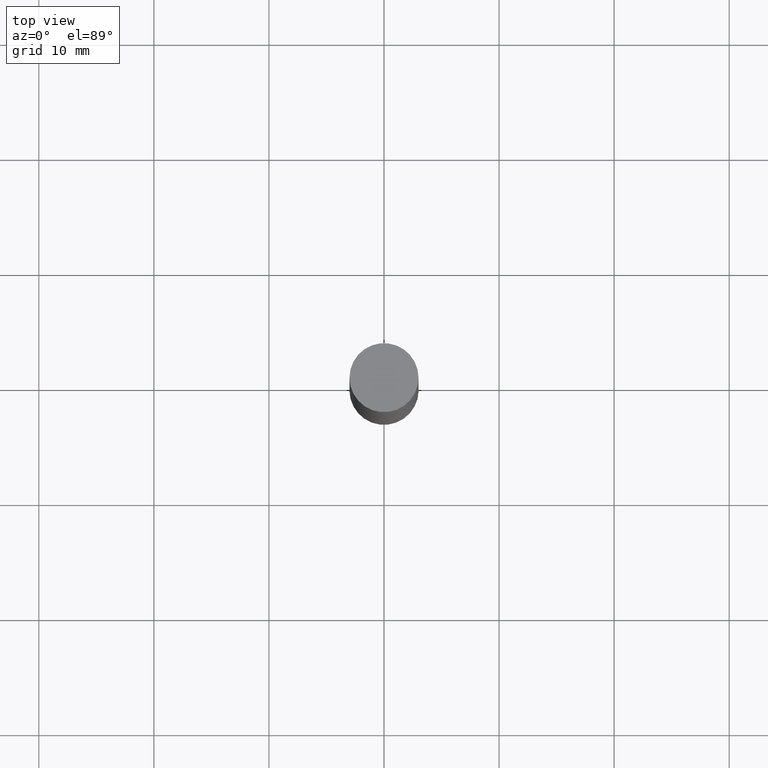
[diagram: clean part render]
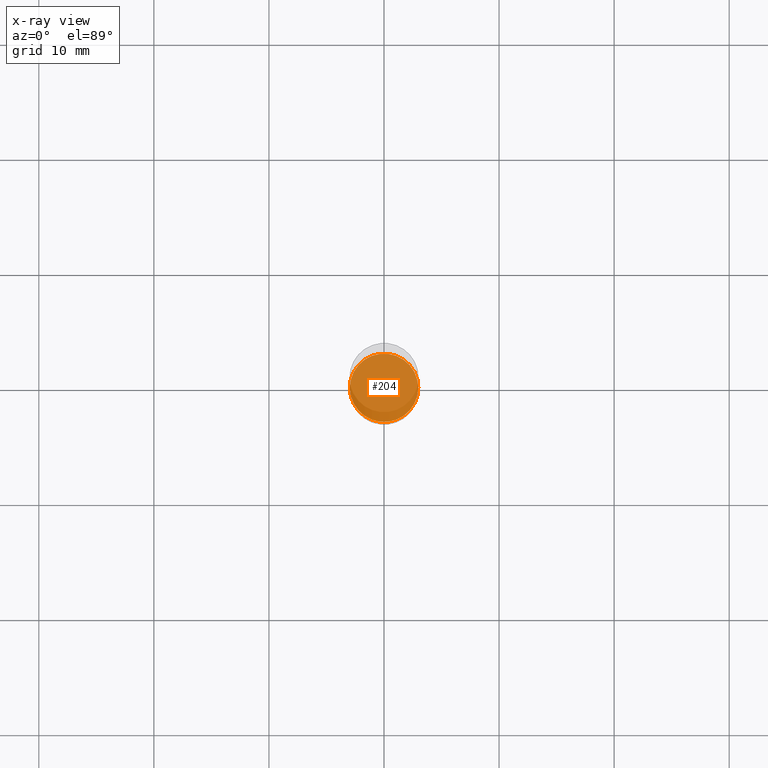
[diagram: x-ray — body ghosted, one internal face saturated and labeled with its STEP entity id]
A machine part, top view, then the same camera in x-ray: the body is ghosted and one INTERNAL B-rep face — a face not visible from any outside direction — is saturated and labeled: STEP entity #204.
In plain terms, the highlighted planar face has unit normal (-0, 0, 1).
Its self-contained STEP definition (entity closure, byte-faithful):
#48 = CARTESIAN_POINT ( 'NONE',  ( 4.910256815939135870E-29, -7.010545380263151710E-15, -2.007899999999999796 ) ) ;
#65 = CARTESIAN_POINT ( 'NONE',  ( 4.910256815939136430E-29, -7.010545380263152499E-15, -2.007900000000000240 ) ) ;
#79 = CIRCLE ( 'NONE', #356, 0.1170999999999999958 ) ;
#97 = CARTESIAN_POINT ( 'NONE',  ( -0.1170999999999999958, -6.173201382339852908E-15, -2.007899999999999796 ) ) ;
#104 = DIRECTION ( 'NONE',  ( 1.000000000000000000, -6.982962677686264344E-15, 0.000000000000000000 ) ) ;
#120 = FACE_OUTER_BOUND ( 'NONE', #139, .T. ) ;
#139 = EDGE_LOOP ( 'NONE', ( #379, #506 ) ) ;
#204 = ADVANCED_FACE ( 'NONE', ( #120 ), #523, .F. ) ;
#216 = AXIS2_PLACEMENT_3D ( 'NONE', #65, #421, #637 ) ;
#249 = DIRECTION ( 'NONE',  ( -2.445468806185136597E-29, 3.491481338843145583E-15, 1.000000000000000000 ) ) ;
#324 = DIRECTION ( 'NONE',  ( -2.445468806185136597E-29, 3.491481338843145583E-15, 1.000000000000000000 ) ) ;
#332 = AXIS2_PLACEMENT_3D ( 'NONE', #643, #324, #534 ) ;
#356 = AXIS2_PLACEMENT_3D ( 'NONE', #48, #249, #104 ) ;
#379 = ORIENTED_EDGE ( 'NONE', *, *, #438, .F. ) ;
#421 = DIRECTION ( 'NONE',  ( -2.438088387897960049E-29, 3.491481338843145188E-15, 1.000000000000000000 ) ) ;
#438 = EDGE_CURVE ( 'NONE', #465, #668, #79, .T. ) ;
#440 = CARTESIAN_POINT ( 'NONE',  ( 0.1170999999999999958, -7.828250309820213170E-15, -2.007899999999999796 ) ) ;
#465 = VERTEX_POINT ( 'NONE', #440 ) ;
#505 = CIRCLE ( 'NONE', #332, 0.1170999999999999958 ) ;
#506 = ORIENTED_EDGE ( 'NONE', *, *, #613, .F. ) ;
#523 = PLANE ( 'NONE',  #216 ) ;
#534 = DIRECTION ( 'NONE',  ( 1.000000000000000000, -6.982962677686264344E-15, 0.000000000000000000 ) ) ;
#613 = EDGE_CURVE ( 'NONE', #668, #465, #505, .T. ) ;
#637 = DIRECTION ( 'NONE',  ( 1.000000000000000000, -6.982962677686265922E-15, 4.876176775795935793E-29 ) ) ;
#643 = CARTESIAN_POINT ( 'NONE',  ( 4.910256815939135870E-29, -7.010545380263151710E-15, -2.007899999999999796 ) ) ;
#668 = VERTEX_POINT ( 'NONE', #97 ) ;